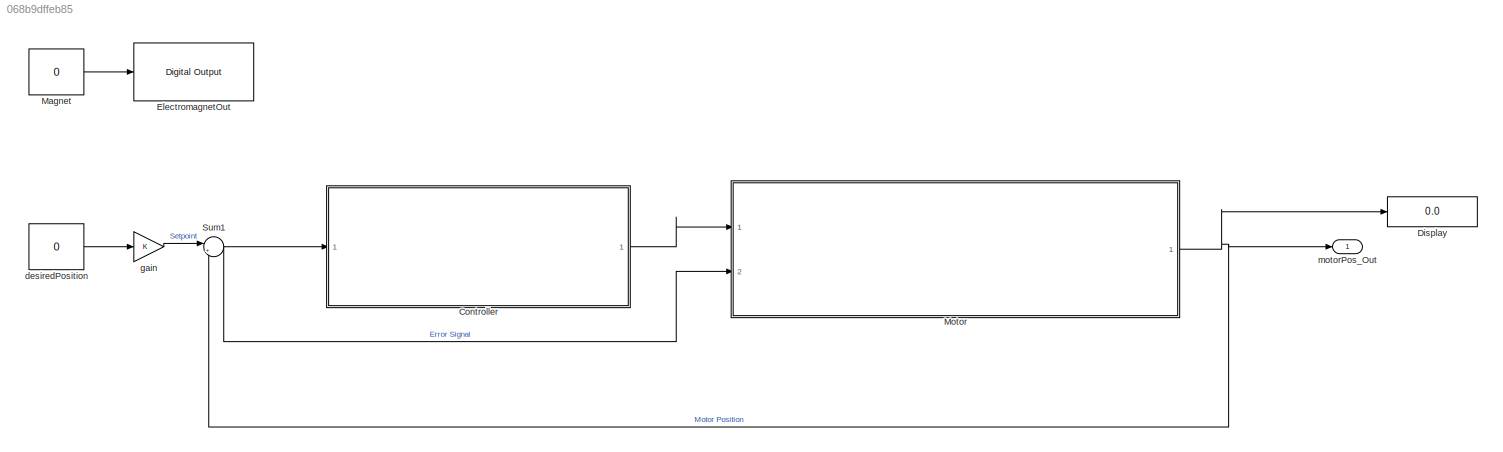
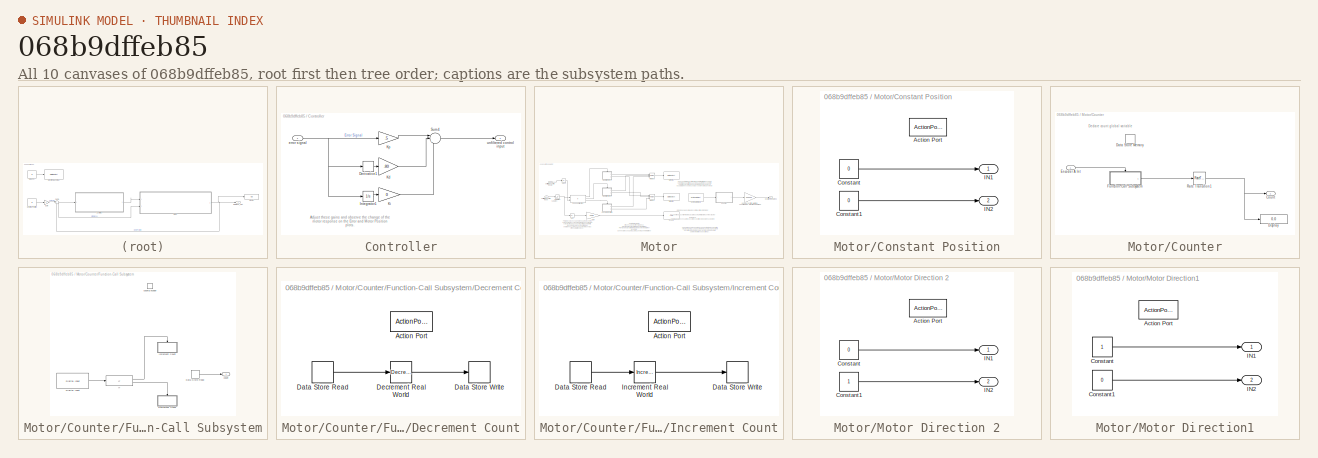
[diagram: thumbnail index - all 10 canvases of the model, root first then tree order]
MODEL slx_068b9dffeb85
KIND model
CONFIG AbsTol = auto
CONFIG EnableMultiTasking = on
CONFIG FixedStep = 0.001
CONFIG MaxStep = auto
CONFIG MinStep = auto
CONFIG RelTol = 1e-3
CONFIG SampleTimeConstraint = Unconstrained
CONFIG SolverName = ode4
CONFIG StartTime = 0.0
CONFIG StopTime = inf
WORKSPACE source: mxarray member
WORKSPACE Error = 0
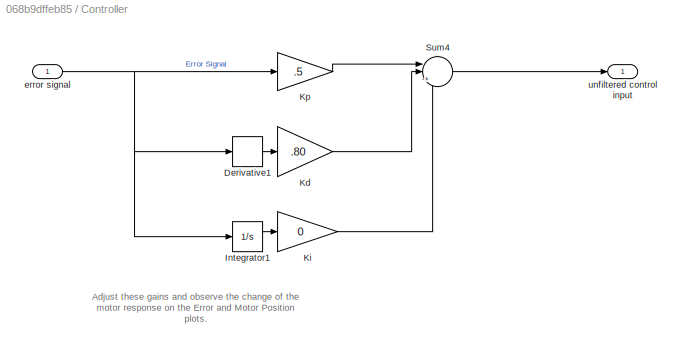
BLOCK [SubSystem] Controller
  Ports = [1, 1]
  RequestExecContextInheritance = off
BLOCK [Derivative] Controller/Derivative1
BLOCK [Integrator] Controller/Integrator1
  Ports = [1, 1]
BLOCK [Gain] Controller/Kd
  Gain = .80
BLOCK [Gain] Controller/Ki
  Gain = 0
BLOCK [Gain] Controller/Kp
  Gain = .5
BLOCK [Sum] Controller/Sum4
  Inputs = ||+++
  Ports = [3, 1]
BLOCK [Inport] Controller/error signal
BLOCK [Outport] Controller/unfiltered control input
BLOCK [Display] Display
  Decimation = 1
  Ports = [1]
BLOCK [Reference] ElectromagnetOut  REF=arduinolib/Digital Output
  Ports = [1]
  SourceBlock = arduinolib/Digital Output
  SourceProductBaseCode = ARDUINO
  SourceType = Arduino Digital Output
BLOCK [Constant] Magnet
  Value = 0
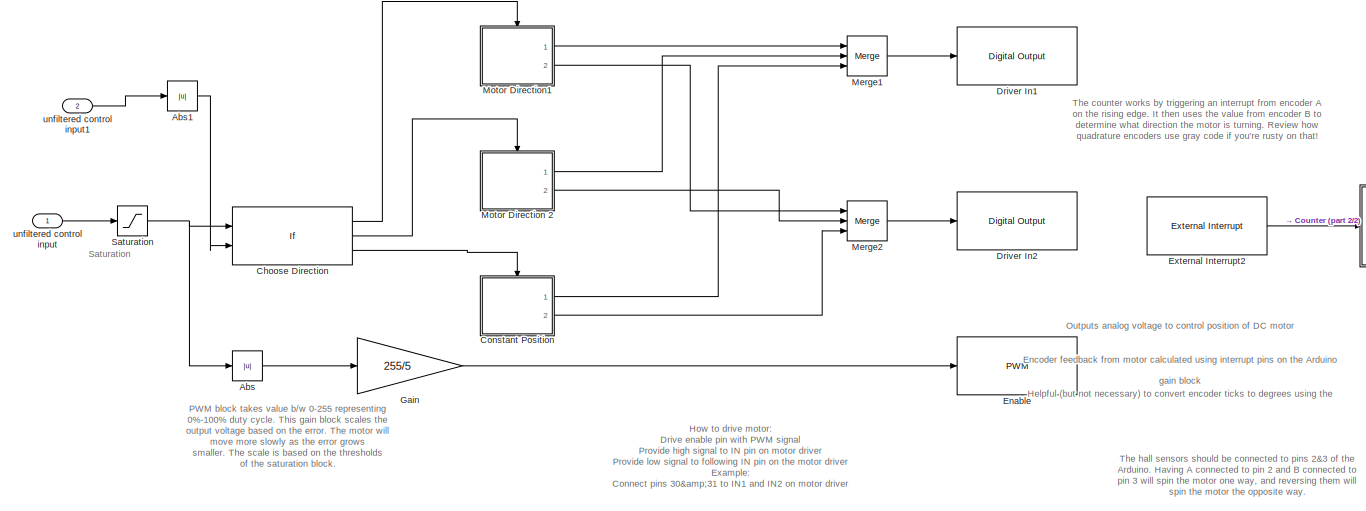
[diagram: Motor - part 1/2, most of the canvas]
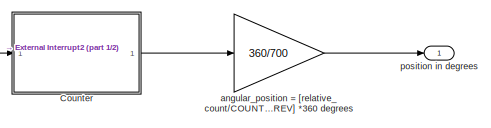
[diagram: Motor - part 2/2, middle right region]
BLOCK [SubSystem] Motor
  Ports = [2, 1]
  RequestExecContextInheritance = off
BLOCK [Abs] Motor/Abs
  SaturateOnIntegerOverflow = off
BLOCK [Abs] Motor/Abs1
  SaturateOnIntegerOverflow = off
BLOCK [If] Motor/Choose Direction
  ElseIfExpressions = u1 < 0 & u2 > 3
  IfExpression = u1 > 0 & u2 > 3
  NumInputs = 2
  Ports = [2, 3]
BLOCK [SubSystem] Motor/Constant Position
  Ports = [0, 2, 0, 0, 0, 0, 0, 1]
  RequestExecContextInheritance = off
  TreatAsAtomicUnit = on
BLOCK [ActionPort] Motor/Constant Position/Action Port
  ActionPortLabel = else
BLOCK [Constant] Motor/Constant Position/Constant
  Value = 0
BLOCK [Constant] Motor/Constant Position/Constant1
  Value = 0
BLOCK [Outport] Motor/Constant Position/IN1
BLOCK [Outport] Motor/Constant Position/IN2
  Port = 2
BLOCK [SubSystem] Motor/Counter
  Ports = [1, 1]
  RequestExecContextInheritance = off
BLOCK [Outport] Motor/Counter/Count
BLOCK [DataStoreMemory] Motor/Counter/Data Store Memory
  DataStoreName = count
  ReadBeforeWriteMsg = warning
  ShowAdditionalParam = off
  WriteAfterReadMsg = warning
  WriteAfterWriteMsg = warning
BLOCK [Display] Motor/Counter/Display
  Decimation = 1
  Ports = [1]
BLOCK [Inport] Motor/Counter/Encoder A Int
BLOCK [SubSystem] Motor/Counter/Function-Call Subsystem
  Ports = [0, 1, 0, 1]
  RequestExecContextInheritance = off
  TreatAsAtomicUnit = on
BLOCK [DataStoreRead] Motor/Counter/Function-Call Subsystem/Data Store Read
  DataStoreName = count
  IndexOptions = Index vector (dialog)
  Indices = 1
  OutputSizes = 1
  Ports = [0, 1]
BLOCK [SubSystem] Motor/Counter/Function-Call Subsystem/Decrement Count
  Ports = [0, 0, 0, 0, 0, 0, 0, 1]
  RequestExecContextInheritance = off
  TreatAsAtomicUnit = on
BLOCK [ActionPort] Motor/Counter/Function-Call Subsystem/Decrement Count/Action Port
  ActionPortLabel = else
BLOCK [DataStoreRead] Motor/Counter/Function-Call Subsystem/Decrement Count/Data Store Read
  DataStoreName = count
  IndexOptions = Index vector (dialog)
  Indices = 1
  OutputSizes = 1
  Ports = [0, 1]
BLOCK [DataStoreWrite] Motor/Counter/Function-Call Subsystem/Decrement Count/Data Store Write
  DataStoreName = count
  IndexOptions = Index vector (dialog)
  Indices = 1
  OutputSizes = 1
  Ports = [1]
BLOCK [Reference] Motor/Counter/Function-Call Subsystem/Decrement Count/Decrement Real World  REF=simulink/Additional Math
& Discrete/Additional Math:
Increment - Decrement/Decrement
Real World
  Ports = [1, 1]
  SourceBlock = simulink/Additional Math\n& Discrete/Additional Math:\nIncrement - Decrement/Decrement\nReal World
  SourceProductBaseCode = SL
  SourceType = Real World Value Decrement
BLOCK [Reference] Motor/Counter/Function-Call Subsystem/Digital Input  REF=arduinolib/Digital Input
  Ports = [0, 1]
  SourceBlock = arduinolib/Digital Input
  SourceProductBaseCode = ARDUINO
  SourceType = Arduino Digital Input
BLOCK [If] Motor/Counter/Function-Call Subsystem/If
  IfExpression = u1 == 0
  Ports = [1, 2]
BLOCK [SubSystem] Motor/Counter/Function-Call Subsystem/Increment Count
  Ports = [0, 0, 0, 0, 0, 0, 0, 1]
  RequestExecContextInheritance = off
  TreatAsAtomicUnit = on
BLOCK [ActionPort] Motor/Counter/Function-Call Subsystem/Increment Count/Action Port
  ActionPortLabel = if(u1 == 0)
BLOCK [DataStoreRead] Motor/Counter/Function-Call Subsystem/Increment Count/Data Store Read
  DataStoreName = count
  IndexOptions = Index vector (dialog)
  Indices = 1
  OutputSizes = 1
  Ports = [0, 1]
BLOCK [DataStoreWrite] Motor/Counter/Function-Call Subsystem/Increment Count/Data Store Write
  DataStoreName = count
  IndexOptions = Index vector (dialog)
  Indices = 1
  OutputSizes = 1
  Ports = [1]
BLOCK [Reference] Motor/Counter/Function-Call Subsystem/Increment Count/Increment Real World  REF=simulink/Additional Math
& Discrete/Additional Math:
Increment - Decrement/Increment
Real World
  Ports = [1, 1]
  SourceBlock = simulink/Additional Math\n& Discrete/Additional Math:\nIncrement - Decrement/Increment\nReal World
  SourceProductBaseCode = SL
  SourceType = Real World Value Increment
BLOCK [Outport] Motor/Counter/Function-Call Subsystem/count
BLOCK [TriggerPort] Motor/Counter/Function-Call Subsystem/countEncoder
  Ports = []
  StatesWhenEnabling = held
  TriggerType = function-call
  VariantControl = Variant
BLOCK [RateTransition] Motor/Counter/Rate Transition1
  Deterministic = off
BLOCK [Reference] Motor/Driver In1  REF=arduinolib/Digital Output
  Ports = [1]
  SourceBlock = arduinolib/Digital Output
  SourceProductBaseCode = ARDUINO
  SourceType = Arduino Digital Output
BLOCK [Reference] Motor/Driver In2  REF=arduinolib/Digital Output
  Ports = [1]
  SourceBlock = arduinolib/Digital Output
  SourceProductBaseCode = ARDUINO
  SourceType = Arduino Digital Output
BLOCK [Reference] Motor/Enable  REF=arduinolib/PWM
  Ports = [1]
  SourceBlock = arduinolib/PWM
  SourceProductBaseCode = ARDUINO
  SourceType = Arduino PWM
BLOCK [Reference] Motor/External Interrupt2  REF=arduinolib/External Interrupt
  Ports = [0, 1]
  SourceBlock = arduinolib/External Interrupt
  SourceProductBaseCode = ARDUINO
  SourceType = Arduino Interrupt Block
BLOCK [Gain] Motor/Gain
  Gain = 255/5
BLOCK [Merge] Motor/Merge1
  Inputs = 3
  Ports = [3, 1]
BLOCK [Merge] Motor/Merge2
  Inputs = 3
  Ports = [3, 1]
BLOCK [SubSystem] Motor/Motor Direction 2
  Ports = [0, 2, 0, 0, 0, 0, 0, 1]
  RequestExecContextInheritance = off
  TreatAsAtomicUnit = on
BLOCK [ActionPort] Motor/Motor Direction 2/Action Port
  ActionPortLabel = elseif(u1 < 0 & u2 > 3)
BLOCK [Constant] Motor/Motor Direction 2/Constant
  Value = 0
BLOCK [Constant] Motor/Motor Direction 2/Constant1
BLOCK [Outport] Motor/Motor Direction 2/IN1
BLOCK [Outport] Motor/Motor Direction 2/IN2
  Port = 2
BLOCK [SubSystem] Motor/Motor Direction1
  Ports = [0, 2, 0, 0, 0, 0, 0, 1]
  RequestExecContextInheritance = off
  TreatAsAtomicUnit = on
BLOCK [ActionPort] Motor/Motor Direction1/Action Port
  ActionPortLabel = if(u1 > 0 & u2 > 3)
BLOCK [Constant] Motor/Motor Direction1/Constant
BLOCK [Constant] Motor/Motor Direction1/Constant1
  Value = 0
BLOCK [Outport] Motor/Motor Direction1/IN1
BLOCK [Outport] Motor/Motor Direction1/IN2
  Port = 2
BLOCK [Saturate] Motor/Saturation
  LowerLimit = -5
  UpperLimit = 5
BLOCK [Gain] Motor/angular_position = [relative_count//COUNTS_PER_REV] *360 degrees
  Gain = 360/700
BLOCK [Outport] Motor/position in degrees
  VectorParamsAs1DForOutWhenUnconnected = off
BLOCK [Inport] Motor/unfiltered control input
BLOCK [Inport] Motor/unfiltered control input1
  Port = 2
BLOCK [Sum] Sum1
  Inputs = |+-
  Ports = [2, 1]
BLOCK [Constant] desiredPosition
  Value = 0
BLOCK [Gain] gain
  NameLocation = top
BLOCK [Outport] motorPos_Out
  VectorParamsAs1DForOutWhenUnconnected = off
ANNOTATION Controller: Adjust these gains and observe the change of the motor response on the Error and Motor Position plots.
ANNOTATION Motor: PWM block takes value b/w 0-255 representing 0%-100% duty cycle. This gain block scales the output voltage based on the error. The motor will move more slowly as the error grows smaller. The scale is based on the thresholds of the saturation block.
ANNOTATION Motor: How to drive motor: Drive enable pin with PWM signal Provide high signal to IN pin on motor driver Provide low signal to following IN pin on the motor driver Example: Connect pins 30&31 to IN1 and IN2 on motor driver Driving pin 30 high and pin 31 low will cause the motor to spin one direction Reversing pins 30 and 31 will cause the motor to spin the other direction
ANNOTATION Motor: Outputs analog voltage to control position of DC motor Encoder feedback from motor calculated using interrupt pins on the Arduino Helpful (but not necessary) to convert encoder ticks to degrees using the gain block
ANNOTATION Motor: Saturation
ANNOTATION Motor: The counter works by triggering an interrupt from encoder A on the rising edge. It then uses the value from encoder B to determine what direction the motor is turning. Review how quadrature encoders use gray code if you're rusty on that!
ANNOTATION Motor: The hall sensors should be connected to pins 2&3 of the Arduino. Having A connected to pin 2 and B connected to pin 3 will spin the motor one way, and reversing them will spin the motor the opposite way.
ANNOTATION Motor/Counter: Declare count global variable
LINE Controller/Derivative1:1 -> Controller/Kd:1
LINE Controller/Integrator1:1 -> Controller/Ki:1
LINE Controller/Kd:1 -> Controller/Sum4:2
LINE Controller/Ki:1 -> Controller/Sum4:3
LINE Controller/Kp:1 -> Controller/Sum4:1
LINE Controller/Sum4:1 -> Controller/unfiltered control input:1
NET Controller/error signal:1 -> Controller/Derivative1:1, Controller/Integrator1:1, Controller/Kp:1
LINE Controller:1 -> Motor:1
LINE Magnet:1 -> ElectromagnetOut:1
LINE Motor/Abs1:1 -> Motor/Choose Direction:2
LINE Motor/Abs:1 -> Motor/Gain:1
LINE Motor/Choose Direction:1 -> Motor/Motor Direction1:ifaction
LINE Motor/Choose Direction:2 -> Motor/Motor Direction 2:ifaction
LINE Motor/Choose Direction:3 -> Motor/Constant Position:ifaction
LINE Motor/Constant Position/Constant1:1 -> Motor/Constant Position/IN2:1
LINE Motor/Constant Position/Constant:1 -> Motor/Constant Position/IN1:1
LINE Motor/Constant Position:1 -> Motor/Merge1:3
LINE Motor/Constant Position:2 -> Motor/Merge2:3
LINE Motor/Counter/Encoder A Int:1 -> Motor/Counter/Function-Call Subsystem:trigger
LINE Motor/Counter/Function-Call Subsystem/Data Store Read:1 -> Motor/Counter/Function-Call Subsystem/count:1
LINE Motor/Counter/Function-Call Subsystem/Decrement Count/Data Store Read:1 -> Motor/Counter/Function-Call Subsystem/Decrement Count/Decrement Real World:1
LINE Motor/Counter/Function-Call Subsystem/Decrement Count/Decrement Real World:1 -> Motor/Counter/Function-Call Subsystem/Decrement Count/Data Store Write:1
LINE Motor/Counter/Function-Call Subsystem/Digital Input:1 -> Motor/Counter/Function-Call Subsystem/If:1
LINE Motor/Counter/Function-Call Subsystem/If:1 -> Motor/Counter/Function-Call Subsystem/Increment Count:ifaction
LINE Motor/Counter/Function-Call Subsystem/If:2 -> Motor/Counter/Function-Call Subsystem/Decrement Count:ifaction
LINE Motor/Counter/Function-Call Subsystem/Increment Count/Data Store Read:1 -> Motor/Counter/Function-Call Subsystem/Increment Count/Increment Real World:1
LINE Motor/Counter/Function-Call Subsystem/Increment Count/Increment Real World:1 -> Motor/Counter/Function-Call Subsystem/Increment Count/Data Store Write:1
LINE Motor/Counter/Function-Call Subsystem:1 -> Motor/Counter/Rate Transition1:1
NET Motor/Counter/Rate Transition1:1 -> Motor/Counter/Count:1, Motor/Counter/Display:1
LINE Motor/Counter:1 -> Motor/angular_position = [relative_count//COUNTS_PER_REV] *360 degrees:1
LINE Motor/External Interrupt2:1 -> Motor/Counter:1
LINE Motor/Gain:1 -> Motor/Enable:1
LINE Motor/Merge1:1 -> Motor/Driver In1:1
LINE Motor/Merge2:1 -> Motor/Driver In2:1
LINE Motor/Motor Direction 2/Constant1:1 -> Motor/Motor Direction 2/IN2:1
LINE Motor/Motor Direction 2/Constant:1 -> Motor/Motor Direction 2/IN1:1
LINE Motor/Motor Direction 2:1 -> Motor/Merge1:2
LINE Motor/Motor Direction 2:2 -> Motor/Merge2:2
LINE Motor/Motor Direction1/Constant1:1 -> Motor/Motor Direction1/IN2:1
LINE Motor/Motor Direction1/Constant:1 -> Motor/Motor Direction1/IN1:1
LINE Motor/Motor Direction1:1 -> Motor/Merge1:1
LINE Motor/Motor Direction1:2 -> Motor/Merge2:1
NET Motor/Saturation:1 -> Motor/Abs:1, Motor/Choose Direction:1
LINE Motor/angular_position = [relative_count//COUNTS_PER_REV] *360 degrees:1 -> Motor/position in degrees:1
LINE Motor/unfiltered control input1:1 -> Motor/Abs1:1
LINE Motor/unfiltered control input:1 -> Motor/Saturation:1
NET Motor:1 -> Display:1, Sum1:2, motorPos_Out:1
NET Sum1:1 -> Controller:1, Motor:2
LINE desiredPosition:1 -> gain:1
LINE gain:1 -> Sum1:1
note: NET lines group one-source signal fan-out (src -> all destinations, sorted); 1:1 wires keep LINE
